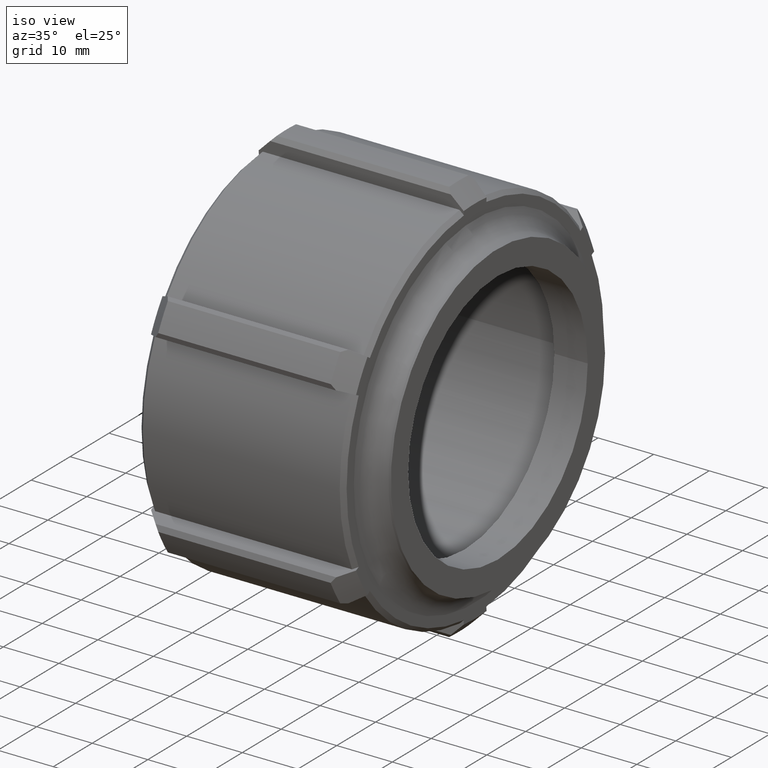
[diagram: clean part render]
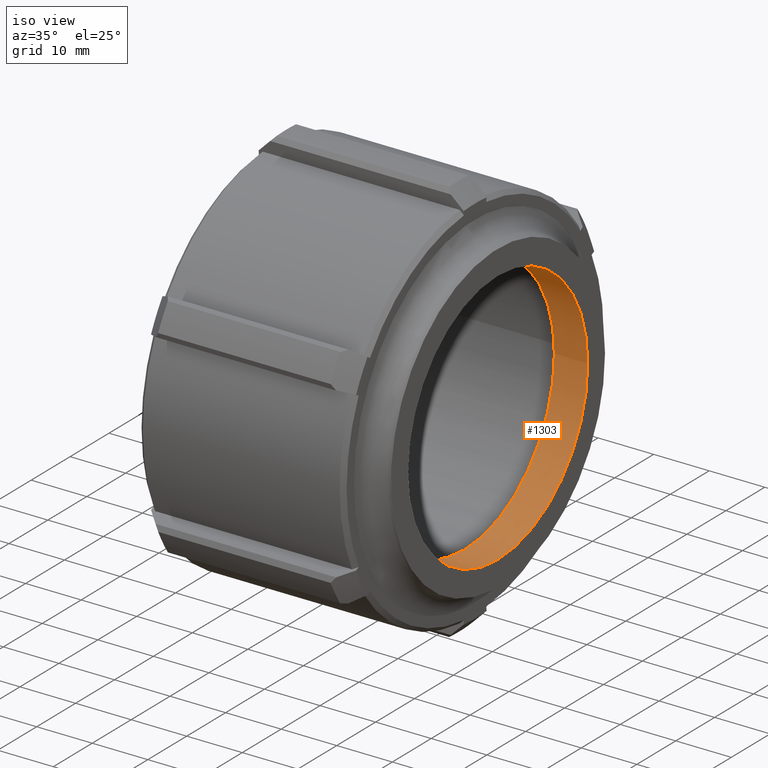
[diagram: same view with one face highlighted and labeled with its STEP entity id]
A machine part, iso view. The second image highlights one B-rep face of the part: STEP entity #1303.
In plain terms, the highlighted cylindrical surface (bore or boss wall) has radius 23.08 mm, axis along (1, 0, 0).
Its self-contained STEP definition (entity closure, byte-faithful):
#76=CYLINDRICAL_SURFACE('',#1428,23.08);
#329=FACE_BOUND('',#475,.T.);
#399=FACE_OUTER_BOUND('',#474,.T.);
#474=EDGE_LOOP('',(#1227));
#475=EDGE_LOOP('',(#1228));
#536=CIRCLE('',#1427,23.08);
#537=CIRCLE('',#1429,23.08);
#665=VERTEX_POINT('',#2223);
#666=VERTEX_POINT('',#2226);
#854=EDGE_CURVE('',#665,#665,#536,.T.);
#855=EDGE_CURVE('',#666,#666,#537,.T.);
#1227=ORIENTED_EDGE('',*,*,#855,.F.);
#1228=ORIENTED_EDGE('',*,*,#854,.T.);
#1303=ADVANCED_FACE('',(#399,#329),#76,.F.);
#1427=AXIS2_PLACEMENT_3D('',#2224,#1781,#1782);
#1428=AXIS2_PLACEMENT_3D('',#2225,#1783,#1784);
#1429=AXIS2_PLACEMENT_3D('',#2227,#1785,#1786);
#1781=DIRECTION('center_axis',(1.,0.,0.));
#1782=DIRECTION('ref_axis',(0.,0.,-1.));
#1783=DIRECTION('center_axis',(1.,0.,0.));
#1784=DIRECTION('ref_axis',(0.,1.,0.));
#1785=DIRECTION('center_axis',(1.,0.,0.));
#1786=DIRECTION('ref_axis',(0.,0.,-1.));
#2223=CARTESIAN_POINT('',(41.,23.08,0.));
#2224=CARTESIAN_POINT('Origin',(41.,0.,0.));
#2225=CARTESIAN_POINT('Origin',(38.,0.,0.));
#2226=CARTESIAN_POINT('',(35.,23.08,0.));
#2227=CARTESIAN_POINT('Origin',(35.,0.,0.));